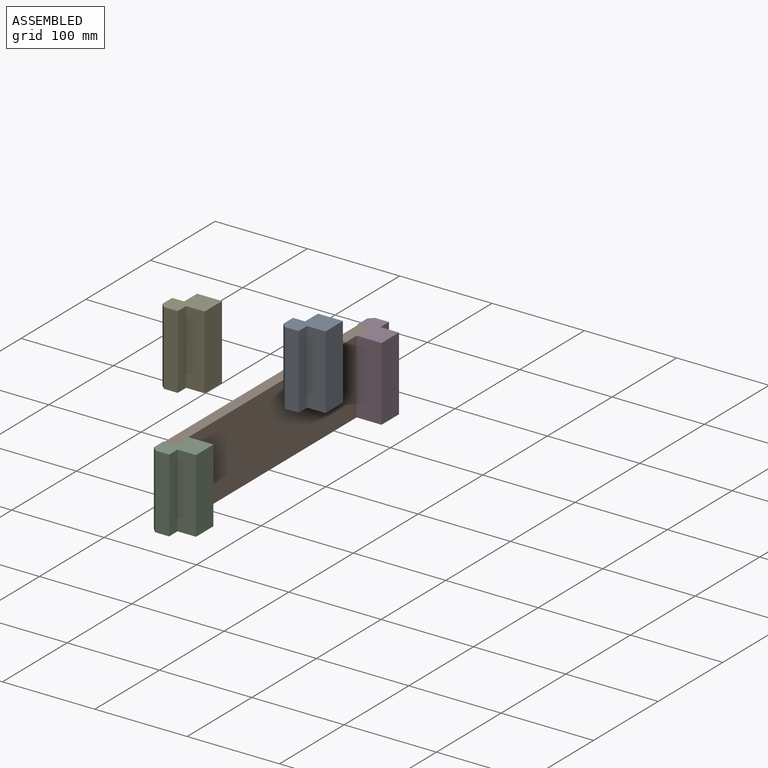
[diagram: assembled view]
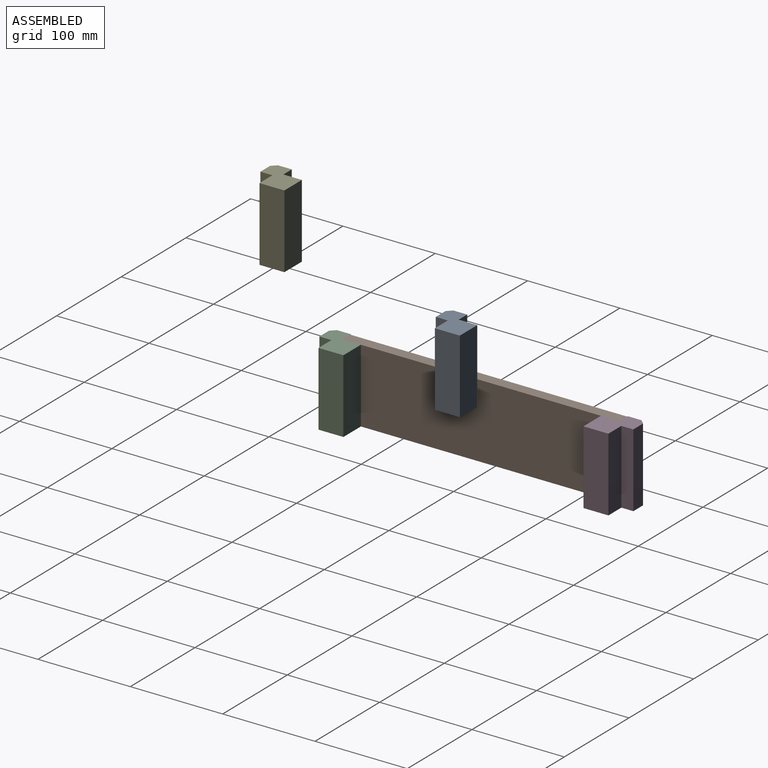
[diagram: assembled view, second angle]
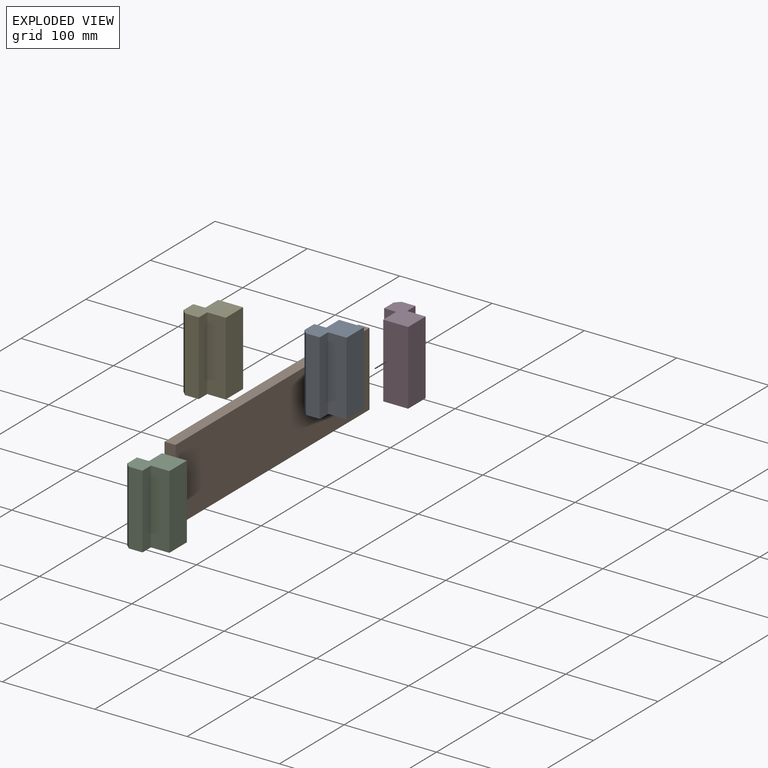
[diagram: exploded view]
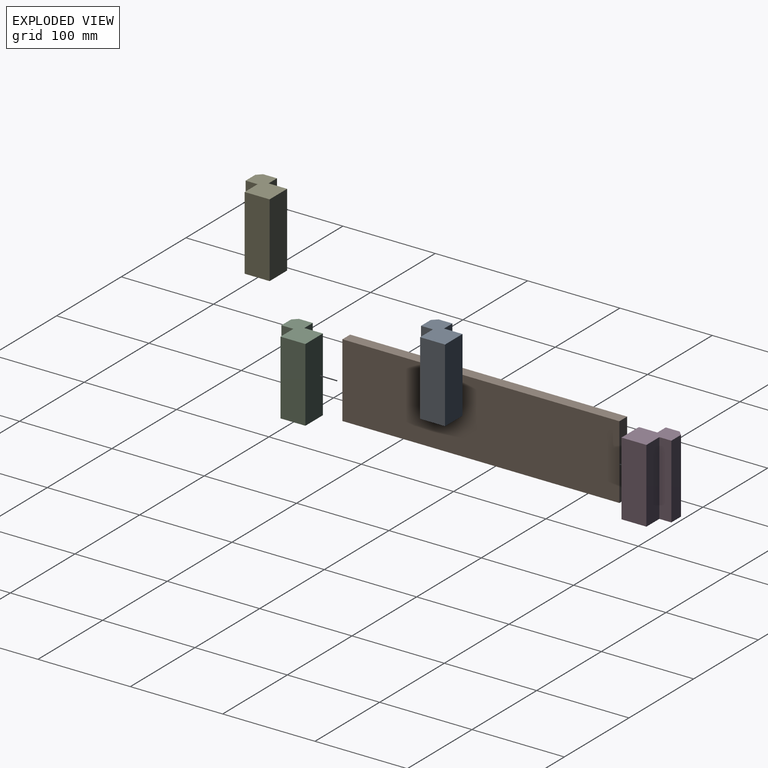
[diagram: exploded view, second angle]
ASSEMBLY  parts=5 mates=6
PART A: 11 faces, bbox 40x40x80 mm
  f0: plane 80x27mm, normal (1,0,0), area 2160mm2, adj f1,f4,f5,f8
  f1: plane 80x27mm, normal (0,1,0), area 2160mm2, adj f0,f4,f5,f7
  f2: plane 80x15mm, normal (-1,0,0), area 1200mm2, adj f4,f5,f6,f10
  f3: plane 80x15mm, normal (0,-1,0), area 1200mm2, adj f4,f5,f9,f10
  f4: plane 40x40mm, normal (0,0,1), area 1067.5mm2, adj f0,f1,f2,f3,f6,f7,f8,f9
  f5: plane 40x40mm, normal (0,0,-1), area 1067.5mm2, adj f0,f1,f2,f3,f6,f7,f8,f9
  f6: plane 80x13mm, normal (0,1,0), area 1040mm2, adj f2,f4,f5,f7
  f7: plane 80x20mm, normal (-1,0,0), area 1600mm2, adj f1,f4,f5,f6
  f8: plane 80x20mm, normal (0,-1,0), area 1600mm2, adj f0,f4,f5,f9
  f9: plane 80x13mm, normal (1,0,0), area 1040mm2, adj f3,f4,f5,f8
  f10: plane 80x5mm, normal (-0.71,-0.71,0), area 565.7mm2, adj f2,f3,f4,f5
PART B: 6 faces, bbox 300x80x12 mm
  f0: plane 300x12mm, normal (0,1,0), area 3600mm2, adj f1,f3,f4,f5
  f1: plane 80x12mm, normal (-1,0,0), area 960mm2, adj f0,f2,f4,f5
  f2: plane 300x12mm, normal (0,-1,0), area 3600mm2, adj f1,f3,f4,f5
  f3: plane 80x12mm, normal (1,0,0), area 960mm2, adj f0,f2,f4,f5
  f4: plane 300x80mm, normal (0,0,1), area 24000mm2, adj f0,f1,f2,f3
  f5: plane 300x80mm, normal (0,0,-1), area 24000mm2, adj f0,f1,f2,f3
PART C: same geometry as A
PART D: same geometry as A
PART E: same geometry as A
PLACE A t=(69.31,-26.72,87.43)mm
PLACE B rot(axis=(-0.58,0.58,-0.58),120deg) t=(35.47,142.8,14.65)mm
PLACE C t=(34.47,-177.2,14.65)mm
PLACE D rot(axis=(0,0,-1),90deg) t=(34.47,162.8,14.65)mm
PLACE E t=(70.72,-215.71,179.52)mm
MATE planar C.f6 <-> B.f3  axis (0,1,0) through (34.47,-157.2,94.65)mm
MATE planar C.f4 <-> B.f2  axis (0,0,1) through (40.97,-157.2,94.65)mm
MATE planar B.f1 <-> D.f9  axis (0,1,0) through (47.47,142.8,54.65)mm
MATE planar D.f4 <-> B.f2  axis (0,0,1) through (74.47,136.3,94.65)mm
MATE planar B.f4 <-> C.f7  axis (1,0,0) through (47.47,-7.2,54.65)mm
MATE planar B.f4 <-> D.f8  axis (1,0,0) through (47.47,142.8,54.65)mm
